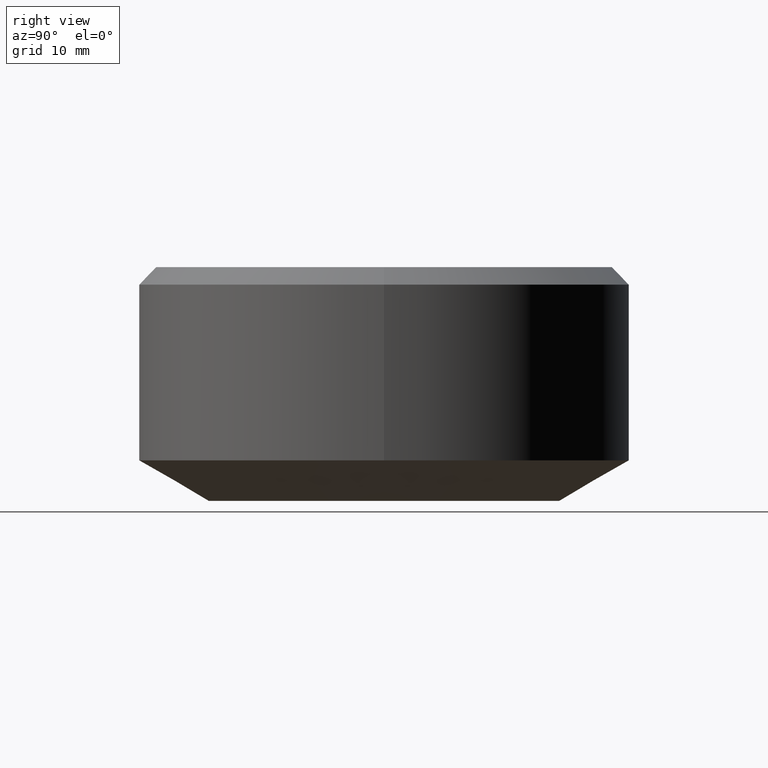
[diagram: clean part render]
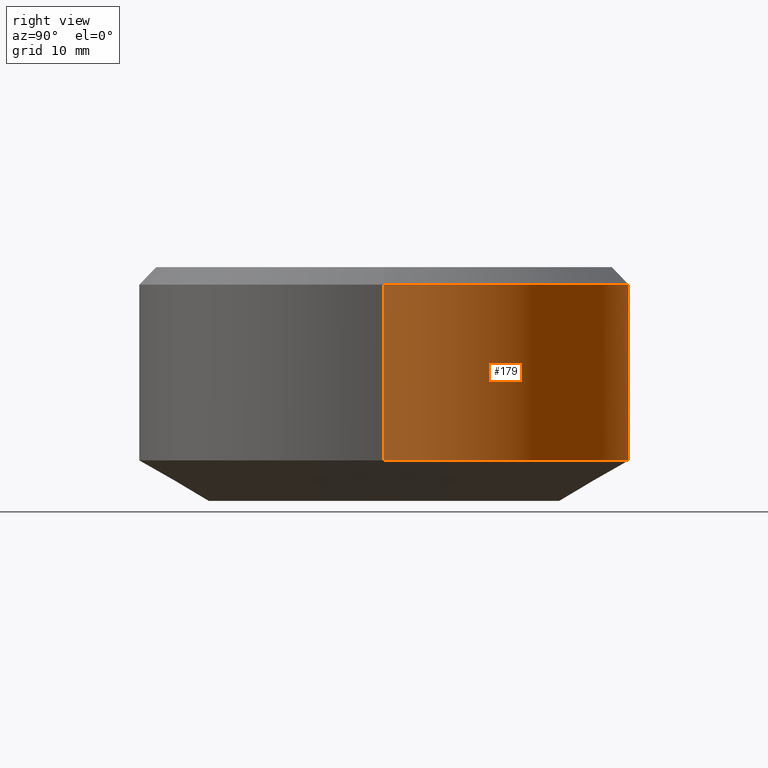
[diagram: same view with one face highlighted and labeled with its STEP entity id]
A machine part, right view. The second image highlights one B-rep face of the part: STEP entity #179.
In plain terms, the highlighted cylindrical surface (partial cylindrical patch) has radius 21 mm, axis along (-0, -0, 1).
Its self-contained STEP definition (entity closure, byte-faithful):
#10 = DIRECTION ( 'NONE',  ( 1.000000000000000000, 0.0000000000000000000, 0.0000000000000000000 ) ) ;
#11 = ORIENTED_EDGE ( 'NONE', *, *, #38, .T. ) ;
#16 = VERTEX_POINT ( 'NONE', #157 ) ;
#34 = DIRECTION ( 'NONE',  ( -0.0000000000000000000, -0.0000000000000000000, 1.000000000000000000 ) ) ;
#38 = EDGE_CURVE ( 'NONE', #100, #16, #253, .T. ) ;
#57 = VECTOR ( 'NONE', #295, 1000.000000000000000 ) ;
#58 = DIRECTION ( 'NONE',  ( -0.0000000000000000000, -0.0000000000000000000, 1.000000000000000000 ) ) ;
#59 = DIRECTION ( 'NONE',  ( -0.0000000000000000000, -0.0000000000000000000, 1.000000000000000000 ) ) ;
#87 = CARTESIAN_POINT ( 'NONE',  ( 0.0000000000000000000, 0.0000000000000000000, 43.26054273766887100 ) ) ;
#90 = DIRECTION ( 'NONE',  ( -0.0000000000000000000, -0.0000000000000000000, 1.000000000000000000 ) ) ;
#100 = VERTEX_POINT ( 'NONE', #216 ) ;
#111 = ORIENTED_EDGE ( 'NONE', *, *, #219, .T. ) ;
#114 = CARTESIAN_POINT ( 'NONE',  ( 21.00000000000000000, 0.0000000000000000000, -6.535898384862265200 ) ) ;
#119 = CARTESIAN_POINT ( 'NONE',  ( 0.0000000000000000000, 0.0000000000000000000, -6.535898384862265200 ) ) ;
#120 = CIRCLE ( 'NONE', #344, 21.00000000000000000 ) ;
#148 = EDGE_CURVE ( 'NONE', #338, #16, #120, .T. ) ;
#156 = CARTESIAN_POINT ( 'NONE',  ( -21.00000000000000000, 2.571758278209441700E-015, 43.26054273766887100 ) ) ;
#157 = CARTESIAN_POINT ( 'NONE',  ( -21.00000000000000000, 0.0000000000000000000, 8.500000000000007100 ) ) ;
#171 = CIRCLE ( 'NONE', #207, 21.00000000000000000 ) ;
#179 = ADVANCED_FACE ( 'NONE', ( #286 ), #206, .T. ) ;
#199 = DIRECTION ( 'NONE',  ( 1.000000000000000000, 0.0000000000000000000, 0.0000000000000000000 ) ) ;
#205 = ORIENTED_EDGE ( 'NONE', *, *, #210, .F. ) ;
#206 = CYLINDRICAL_SURFACE ( 'NONE', #266, 21.00000000000000000 ) ;
#207 = AXIS2_PLACEMENT_3D ( 'NONE', #119, #90, #10 ) ;
#210 = EDGE_CURVE ( 'NONE', #331, #338, #291, .T. ) ;
#213 = CARTESIAN_POINT ( 'NONE',  ( 0.0000000000000000000, 0.0000000000000000000, 8.500000000000007100 ) ) ;
#216 = CARTESIAN_POINT ( 'NONE',  ( -21.00000000000000000, 2.571758278209441700E-015, -6.535898384862265200 ) ) ;
#219 = EDGE_CURVE ( 'NONE', #331, #100, #171, .T. ) ;
#230 = DIRECTION ( 'NONE',  ( 1.000000000000000000, 0.0000000000000000000, 0.0000000000000000000 ) ) ;
#245 = VECTOR ( 'NONE', #34, 1000.000000000000000 ) ;
#253 = LINE ( 'NONE', #156, #57 ) ;
#265 = EDGE_LOOP ( 'NONE', ( #111, #11, #290, #205 ) ) ;
#266 = AXIS2_PLACEMENT_3D ( 'NONE', #87, #58, #230 ) ;
#286 = FACE_OUTER_BOUND ( 'NONE', #265, .T. ) ;
#287 = CARTESIAN_POINT ( 'NONE',  ( 21.00000000000000000, 0.0000000000000000000, 43.26054273766887100 ) ) ;
#290 = ORIENTED_EDGE ( 'NONE', *, *, #148, .F. ) ;
#291 = LINE ( 'NONE', #287, #245 ) ;
#295 = DIRECTION ( 'NONE',  ( -0.0000000000000000000, -0.0000000000000000000, 1.000000000000000000 ) ) ;
#305 = CARTESIAN_POINT ( 'NONE',  ( 21.00000000000000000, 2.571758278209441700E-015, 8.500000000000007100 ) ) ;
#331 = VERTEX_POINT ( 'NONE', #114 ) ;
#338 = VERTEX_POINT ( 'NONE', #305 ) ;
#344 = AXIS2_PLACEMENT_3D ( 'NONE', #213, #59, #199 ) ;